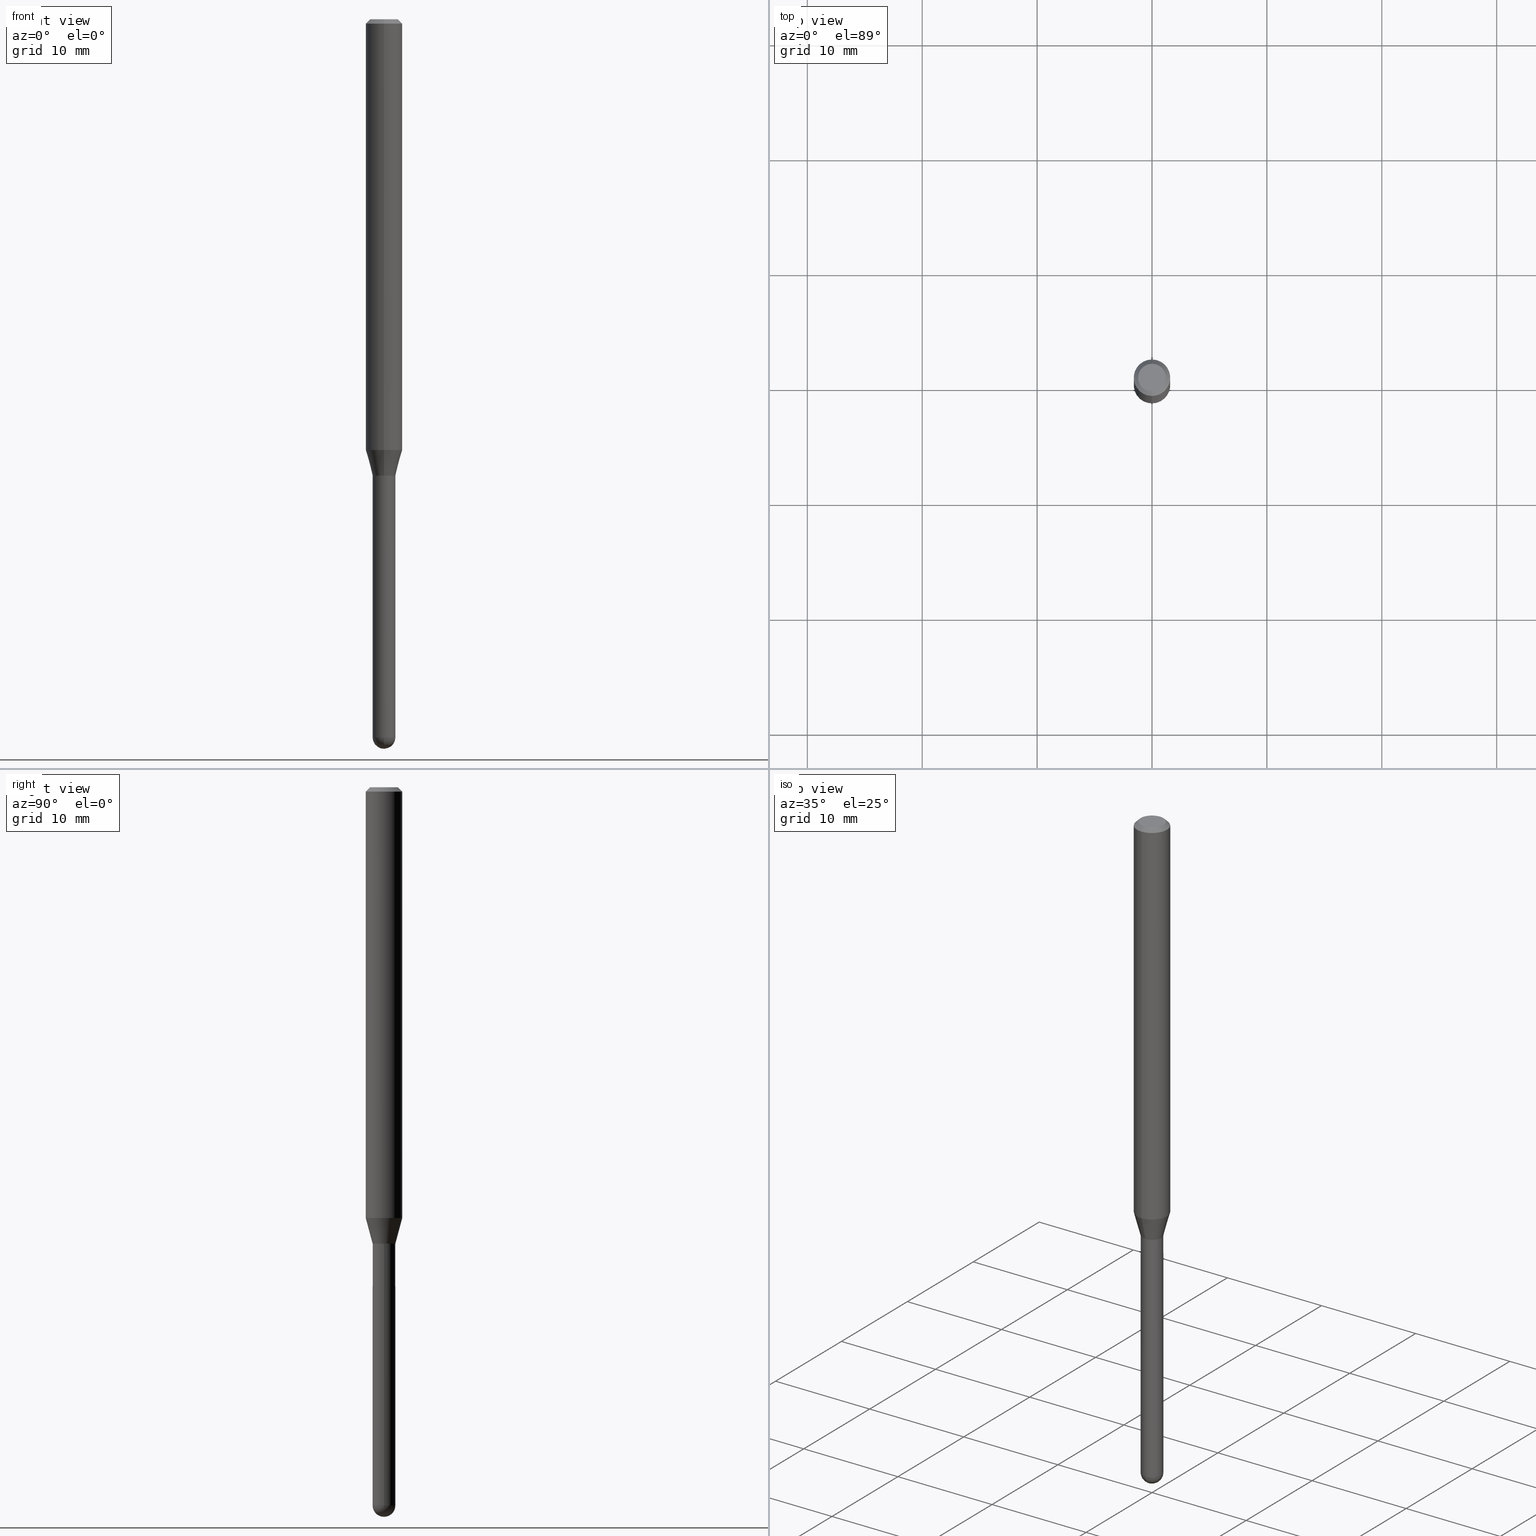
[diagram: canonical four-view strip — front | top / right | iso, engineering-drawing reading convention]
A machine part, canonical four-view strip (front | top / right | iso — engineering-drawing reading convention). The complete STEP part file that produces these views, byte-faithful:
ISO-10303-21;
HEADER;
FILE_DESCRIPTION (( 'STEP AP203' ),
    '1' );
FILE_NAME ('01572.STEP',
    '2024-03-07T19:40:54',
    ( '' ),
    ( '' ),
    'SwSTEP 2.0',
    'SolidWorks 2023',
    '' );
FILE_SCHEMA (( 'CONFIG_CONTROL_DESIGN' ));
ENDSEC;

DATA;
#1 = DIRECTION ( 'NONE',  ( -6.982962677686265922E-15, -1.000000000000000000, 3.491430038370001964E-15 ) ) ;
#2 = DIRECTION ( 'NONE',  ( 2.438088387897960049E-29, -3.491481338843145188E-15, -1.000000000000000000 ) ) ;
#3 = DIRECTION ( 'NONE',  ( -1.000000000000000000, 6.982962677686265922E-15, -4.883557194083112340E-29 ) ) ;
#4 = EDGE_CURVE ( 'NONE', #69, #130, #79, .T. ) ;
#5 = EDGE_LOOP ( 'NONE', ( #345, #174, #98, #48 ) ) ;
#6 = APPROVAL ( #24, 'UNSPECIFIED' ) ;
#7 = LENGTH_MEASURE_WITH_UNIT ( LENGTH_MEASURE( 0.02539999999999999897 ), #379 );
#8 = PERSON_AND_ORGANIZATION ( #292, #230 ) ;
#9 = DIRECTION ( 'NONE',  ( -6.982962677686265922E-15, -1.000000000000000000, 4.370956789862821150E-15 ) ) ;
#10 = CARTESIAN_POINT ( 'NONE',  ( 6.018298732021620914E-29, -8.592535574892981353E-15, -2.460999999999999854 ) ) ;
#11 = CARTESIAN_POINT ( 'NONE',  ( 2.723355444298241737E-16, 0.03899999999999134714, -2.460999999999999854 ) ) ;
#12 = DIRECTION ( 'NONE',  ( -6.982962677686266711E-15, -1.000000000000000000, 0.000000000000000000 ) ) ;
#13 = PLANE ( 'NONE',  #399 ) ;
#14 = CARTESIAN_POINT ( 'NONE',  ( 3.610290673073439047E-29, -5.154387014095367711E-15, -1.476296806022132868 ) ) ;
#15 = CARTESIAN_POINT ( 'NONE',  ( 3.824769239934401493E-29, -5.460596580010683788E-15, -1.564000000000000057 ) ) ;
#16 = VECTOR ( 'NONE', #20, 39.37007874015748143 ) ;
#17 = AXIS2_PLACEMENT_3D ( 'NONE', #502, #220, #377 ) ;
#18 = LINE ( 'NONE', #49, #205 ) ;
#19 = PRODUCT_DEFINITION_SHAPE ( 'NONE', 'NONE',  #450 ) ;
#20 = DIRECTION ( 'NONE',  ( -2.445468806185136877E-29, 3.491481338843145188E-15, 1.000000000000000000 ) ) ;
#21 = ORIENTED_EDGE ( 'NONE', *, *, #305, .F. ) ;
#22 = DIRECTION ( 'NONE',  ( -2.445504629114067359E-29, 3.491430038370002359E-15, 1.000000000000000000 ) ) ;
#23 = LINE ( 'NONE', #134, #263 ) ;
#24 = APPROVAL_STATUS ( 'not_yet_approved' ) ;
#25 = DATE_AND_TIME ( #373, #198 ) ;
#26 = AXIS2_PLACEMENT_3D ( 'NONE', #446, #320, #101 ) ;
#27 = ORIENTED_EDGE ( 'NONE', *, *, #51, .T. ) ;
#28 = AXIS2_PLACEMENT_3D ( 'NONE', #503, #459, #415 ) ;
#29 = ADVANCED_FACE ( 'NONE', ( #159 ), #448, .T. ) ;
#30 = EDGE_CURVE ( 'NONE', #126, #343, #402, .T. ) ;
#31 = APPROVAL_ROLE ( '' ) ;
#32 = DIRECTION ( 'NONE',  ( 1.839019923739650408E-15, 0.2588190451025319527, 0.9659258262890650926 ) ) ;
#33 = EDGE_LOOP ( 'NONE', ( #236, #419, #321, #462 ) ) ;
#34 = DATE_AND_TIME ( #371, #468 ) ;
#35 = AXIS2_PLACEMENT_3D ( 'NONE', #163, #243, #12 ) ;
#36 = PRODUCT_DEFINITION_FORMATION_WITH_SPECIFIED_SOURCE ( 'ANY', '', #210, .NOT_KNOWN. ) ;
#37 = FACE_OUTER_BOUND ( 'NONE', #303, .T. ) ;
#38 = DIRECTION ( 'NONE',  ( 1.000000000000000000, -6.982962677686283277E-15, 0.000000000000000000 ) ) ;
#39 = CARTESIAN_POINT ( 'NONE',  ( 0.000000000000000000, 0.000000000000000000, 0.000000000000000000 ) ) ;
#40 = CLOSED_SHELL ( 'NONE', ( #324, #105, #301, #436, #29, #216, #225, #140, #178, #242, #157, #331 ) ) ;
#41 = AXIS2_PLACEMENT_3D ( 'NONE', #479, #53, #387 ) ;
#42 = APPROVAL_PERSON_ORGANIZATION ( #109, #304, #253 ) ;
#43 = ORIENTED_EDGE ( 'NONE', *, *, #58, .T. ) ;
#44 = LINE ( 'NONE', #184, #248 ) ;
#45 = SPHERICAL_SURFACE ( 'NONE', #108, 0.03899999999999989586 ) ;
#46 = EDGE_CURVE ( 'NONE', #153, #135, #364, .T. ) ;
#47 = VERTEX_POINT ( 'NONE', #354 ) ;
#48 = ORIENTED_EDGE ( 'NONE', *, *, #370, .F. ) ;
#49 = CARTESIAN_POINT ( 'NONE',  ( -2.688440630908829534E-16, -0.03850000000000546041, -1.563999999999999835 ) ) ;
#50 = AXIS2_PLACEMENT_3D ( 'NONE', #63, #437, #396 ) ;
#51 = EDGE_CURVE ( 'NONE', #343, #135, #141, .T. ) ;
#52 = CARTESIAN_POINT ( 'NONE',  ( 3.824769239934400932E-29, -5.460596580010683000E-15, -1.563999999999999835 ) ) ;
#53 = DIRECTION ( 'NONE',  ( -2.445504629114067359E-29, 3.491430038370002359E-15, 1.000000000000000000 ) ) ;
#54 = DIRECTION ( 'NONE',  ( 6.982962677686265922E-15, 1.000000000000000000, -3.491430038370001964E-15 ) ) ;
#55 = MANIFOLD_SOLID_BREP ( 'Body-Move/Copy2[1]', #349 ) ;
#56 = DIRECTION ( 'NONE',  ( -1.807323732225379443E-15, -0.2588190451025252359, 0.9659258262890670910 ) ) ;
#57 = CYLINDRICAL_SURFACE ( 'NONE', #147, 0.03899999999999999994 ) ;
#58 = EDGE_CURVE ( 'NONE', #82, #47, #23, .T. ) ;
#59 = AXIS2_PLACEMENT_3D ( 'NONE', #386, #195, #9 ) ;
#60 = VECTOR ( 'NONE', #154, 39.37007874015748143 ) ;
#61 = DIRECTION ( 'NONE',  ( -2.445468806185136877E-29, 3.491481338843145188E-15, 1.000000000000000000 ) ) ;
#62 = ORIENTED_EDGE ( 'NONE', *, *, #143, .T. ) ;
#63 = CARTESIAN_POINT ( 'NONE',  ( 2.167391171561904280E-46, -3.094369379309082322E-32, -8.862756364305412568E-18 ) ) ;
#64 = EDGE_CURVE ( 'NONE', #47, #129, #329, .T. ) ;
#65 = EDGE_LOOP ( 'NONE', ( #461, #43, #484, #94 ) ) ;
#66 = EDGE_CURVE ( 'NONE', #206, #268, #237, .T. ) ;
#67 = CARTESIAN_POINT ( 'NONE',  ( 3.823546487619844458E-29, -5.458850864991499025E-15, -1.563500000000000112 ) ) ;
#68 = CONICAL_SURFACE ( 'NONE', #156, 0.03849999999999999256, 0.7853981633980202659 ) ;
#69 = VERTEX_POINT ( 'NONE', #270 ) ;
#70 = PERSON_AND_ORGANIZATION ( #292, #230 ) ;
#71 = APPROVAL_ROLE ( '' ) ;
#72 = AXIS2_PLACEMENT_3D ( 'NONE', #67, #217, #326 ) ;
#73 = CARTESIAN_POINT ( 'NONE',  ( 2.771116669464776770E-16, 0.03899999999999459455, -1.563500000000000112 ) ) ;
#74 = DIRECTION ( 'NONE',  ( -2.445468806185136597E-29, 3.491481338843145583E-15, 1.000000000000000000 ) ) ;
#75 = DIRECTION ( 'NONE',  ( 6.982962677686265922E-15, 1.000000000000000000, 0.000000000000000000 ) ) ;
#76 = CALENDAR_DATE ( 2024, 7, 3 ) ;
#77 = EDGE_LOOP ( 'NONE', ( #323, #390 ) ) ;
#78 = ORIENTED_EDGE ( 'NONE', *, *, #305, .T. ) ;
#79 = CIRCLE ( 'NONE', #59, 0.06250000000000000000 ) ;
#80 = LINE ( 'NONE', #454, #60 ) ;
#81 = VECTOR ( 'NONE', #296, 39.37007874015748143 ) ;
#82 = VERTEX_POINT ( 'NONE', #203 ) ;
#83 = PERSON_AND_ORGANIZATION_ROLE ( 'classification_officer' ) ;
#84 = EDGE_CURVE ( 'NONE', #470, #153, #440, .T. ) ;
#85 = CARTESIAN_POINT ( 'NONE',  ( 4.364351673553919652E-16, 0.06249999999999995143, -0.01500000000000022669 ) ) ;
#86 = DIRECTION ( 'NONE',  ( -2.445504629114067359E-29, 3.491430038370002359E-15, 1.000000000000000000 ) ) ;
#87 = CARTESIAN_POINT ( 'NONE',  ( 0.03899999999999999994, -5.733012358380444123E-15, -1.564000000000000057 ) ) ;
#88 = ORIENTED_EDGE ( 'NONE', *, *, #335, .T. ) ;
#89 = LOCAL_TIME ( 14, 40, 54.00000000000000000, #139 ) ;
#90 = DIRECTION ( 'NONE',  ( 6.982962677686265922E-15, 1.000000000000000000, -3.483106191921935554E-15 ) ) ;
#91 = DIRECTION ( 'NONE',  ( -6.982962677686265922E-15, -1.000000000000000000, 3.483106191921935554E-15 ) ) ;
#92 = FACE_OUTER_BOUND ( 'NONE', #5, .T. ) ;
#93 = EDGE_CURVE ( 'NONE', #192, #130, #477, .T. ) ;
#94 = ORIENTED_EDGE ( 'NONE', *, *, #166, .F. ) ;
#95 = DIRECTION ( 'NONE',  ( -2.445468806185136597E-29, 3.491481338843145583E-15, 1.000000000000000000 ) ) ;
#96 = CYLINDRICAL_SURFACE ( 'NONE', #41, 0.03899999999999992362 ) ;
#97 = VERTEX_POINT ( 'NONE', #348 ) ;
#98 = ORIENTED_EDGE ( 'NONE', *, *, #201, .T. ) ;
#99 = PERSON_AND_ORGANIZATION_ROLE ( 'design_owner' ) ;
#100 = EDGE_CURVE ( 'NONE', #127, #192, #312, .T. ) ;
#101 = DIRECTION ( 'NONE',  ( -6.982962677686266711E-15, -1.000000000000000000, 3.491430038370002753E-15 ) ) ;
#102 = EDGE_LOOP ( 'NONE', ( #158, #27 ) ) ;
#103 = DIRECTION ( 'NONE',  ( -2.445504629114067359E-29, 3.491430038370002359E-15, 1.000000000000000000 ) ) ;
#104 = CONICAL_SURFACE ( 'NONE', #219, 0.03849999999999999256, 0.7853981633980202659 ) ;
#105 = ADVANCED_FACE ( 'NONE', ( #494 ), #104, .T. ) ;
#106 = DIRECTION ( 'NONE',  ( -1.000000000000000000, 6.982962677686265922E-15, -4.883557194083112340E-29 ) ) ;
#107 = CARTESIAN_POINT ( 'NONE',  ( 0.000000000000000000, 0.000000000000000000, 0.000000000000000000 ) ) ;
#108 = AXIS2_PLACEMENT_3D ( 'NONE', #289, #106, #215 ) ;
#109 = PERSON_AND_ORGANIZATION ( #292, #230 ) ;
#110 = DIRECTION ( 'NONE',  ( -1.000000000000000000, 6.982962677686265922E-15, -4.876176775795935793E-29 ) ) ;
#111 = CARTESIAN_POINT ( 'NONE',  ( 3.824769239934401493E-29, -5.460596580010683788E-15, -1.564000000000000057 ) ) ;
#112 = EDGE_CURVE ( 'NONE', #130, #69, #366, .T. ) ;
#113 = VERTEX_POINT ( 'NONE', #11 ) ;
#114 = LINE ( 'NONE', #507, #81 ) ;
#115 = AXIS2_PLACEMENT_3D ( 'NONE', #186, #146, #501 ) ;
#116 = AXIS2_PLACEMENT_3D ( 'NONE', #247, #287, #133 ) ;
#117 =( GEOMETRIC_REPRESENTATION_CONTEXT ( 3 ) GLOBAL_UNCERTAINTY_ASSIGNED_CONTEXT ( ( #250 ) ) GLOBAL_UNIT_ASSIGNED_CONTEXT ( ( #351, #361, #121 ) ) REPRESENTATION_CONTEXT ( 'NONE', 'WORKASPACE' ) );
#118 = EDGE_LOOP ( 'NONE', ( #482, #424, #150, #316 ) ) ;
#119 = ORIENTED_EDGE ( 'NONE', *, *, #246, .F. ) ;
#120 = CARTESIAN_POINT ( 'NONE',  ( 3.824769239934401493E-29, -5.460596580010683788E-15, -1.564000000000000057 ) ) ;
#121 =( NAMED_UNIT ( * ) SI_UNIT ( $, .STERADIAN. ) SOLID_ANGLE_UNIT ( ) );
#122 = DIRECTION ( 'NONE',  ( -6.982962677686265922E-15, -1.000000000000000000, 0.000000000000000000 ) ) ;
#123 = CC_DESIGN_PERSON_AND_ORGANIZATION_ASSIGNMENT ( #245, #495, ( #450 ) ) ;
#124 = CARTESIAN_POINT ( 'NONE',  ( -2.723355444297236925E-16, -0.03900000000000511391, -1.564000000000000057 ) ) ;
#125 = EDGE_CURVE ( 'NONE', #97, #470, #196, .T. ) ;
#126 = VERTEX_POINT ( 'NONE', #476 ) ;
#127 = VERTEX_POINT ( 'NONE', #238 ) ;
#128 = FACE_OUTER_BOUND ( 'NONE', #283, .T. ) ;
#129 = VERTEX_POINT ( 'NONE', #313 ) ;
#130 = VERTEX_POINT ( 'NONE', #430 ) ;
#131 = APPROVAL ( #406, 'UNSPECIFIED' ) ;
#132 = AXIS2_PLACEMENT_3D ( 'NONE', #456, #182, #38 ) ;
#133 = DIRECTION ( 'NONE',  ( 6.982962677686265922E-15, 1.000000000000000000, -3.483106191921935554E-15 ) ) ;
#134 = CARTESIAN_POINT ( 'NONE',  ( -4.287811248607203282E-16, -0.06250000000000005551, -0.01499999999999979128 ) ) ;
#135 = VERTEX_POINT ( 'NONE', #87 ) ;
#136 = EDGE_CURVE ( 'NONE', #129, #47, #254, .T. ) ;
#137 = PERSON_AND_ORGANIZATION_ROLE ( 'creator' ) ;
#138 = EDGE_LOOP ( 'NONE', ( #428, #472, #194, #264 ) ) ;
#139 = COORDINATED_UNIVERSAL_TIME_OFFSET ( 5, 0, .BEHIND. ) ;
#140 = ADVANCED_FACE ( 'NONE', ( #481 ), #286, .T. ) ;
#141 = CIRCLE ( 'NONE', #498, 0.03899999999999999994 ) ;
#142 = AXIS2_PLACEMENT_3D ( 'NONE', #427, #160, #278 ) ;
#143 = EDGE_CURVE ( 'NONE', #82, #359, #372, .T. ) ;
#144 = CARTESIAN_POINT ( 'NONE',  ( 6.014963583493821915E-29, -8.597311697409657438E-15, -2.461000000000000298 ) ) ;
#145 = ORIENTED_EDGE ( 'NONE', *, *, #100, .F. ) ;
#146 = DIRECTION ( 'NONE',  ( -2.445504629114067359E-29, 3.491430038370002359E-15, 1.000000000000000000 ) ) ;
#147 = AXIS2_PLACEMENT_3D ( 'NONE', #319, #392, #207 ) ;
#148 = LOCAL_TIME ( 14, 40, 54.00000000000000000, #504 ) ;
#149 = ADVANCED_FACE ( 'NONE', ( #200 ), #57, .T. ) ;
#150 = ORIENTED_EDGE ( 'NONE', *, *, #93, .T. ) ;
#151 = CARTESIAN_POINT ( 'NONE',  ( 3.840629472727447874E-16, 0.04749999999999999362, -1.747056831868805136E-16 ) ) ;
#152 = DIRECTION ( 'NONE',  ( -6.982962677686265922E-15, -1.000000000000000000, 0.000000000000000000 ) ) ;
#153 = VERTEX_POINT ( 'NONE', #204 ) ;
#154 = DIRECTION ( 'NONE',  ( -2.445504629114067359E-29, 3.491430038370001964E-15, 1.000000000000000000 ) ) ;
#155 = ORIENTED_EDGE ( 'NONE', *, *, #51, .F. ) ;
#156 = AXIS2_PLACEMENT_3D ( 'NONE', #52, #22, #352 ) ;
#157 = ADVANCED_FACE ( 'NONE', ( #92 ), #68, .T. ) ;
#158 = ORIENTED_EDGE ( 'NONE', *, *, #497, .T. ) ;
#159 = FACE_OUTER_BOUND ( 'NONE', #138, .T. ) ;
#160 = DIRECTION ( 'NONE',  ( -1.000000000000000000, 7.105427357601001070E-15, -4.926315508542082329E-29 ) ) ;
#161 = FACE_OUTER_BOUND ( 'NONE', #340, .T. ) ;
#162 = DIRECTION ( 'NONE',  ( -2.445468806185136597E-29, 3.491481338843145583E-15, 1.000000000000000000 ) ) ;
#163 = CARTESIAN_POINT ( 'NONE',  ( 3.824769239934400932E-29, -5.460596580010683000E-15, -1.563999999999999835 ) ) ;
#164 = DIRECTION ( 'NONE',  ( -2.445468806185136597E-29, 3.491481338843145583E-15, 1.000000000000000000 ) ) ;
#165 = DIRECTION ( 'NONE',  ( -6.982962677686265922E-15, -1.000000000000000000, 3.483106191921935554E-15 ) ) ;
#166 = EDGE_CURVE ( 'NONE', #359, #129, #170, .T. ) ;
#167 = DIRECTION ( 'NONE',  ( -2.445504629114067359E-29, 3.491430038370002359E-15, 1.000000000000000000 ) ) ;
#168 = LINE ( 'NONE', #314, #189 ) ;
#169 = EDGE_LOOP ( 'NONE', ( #193, #398, #443, #426 ) ) ;
#170 = LINE ( 'NONE', #85, #339 ) ;
#171 = CARTESIAN_POINT ( 'NONE',  ( -2.688440630908829534E-16, -0.03850000000000546041, -1.563999999999999835 ) ) ;
#172 = APPROVAL_DATE_TIME ( #25, #131 ) ;
#173 = CIRCLE ( 'NONE', #28, 0.03899999999999999994 ) ;
#174 = ORIENTED_EDGE ( 'NONE', *, *, #66, .T. ) ;
#175 = PERSON_AND_ORGANIZATION ( #292, #230 ) ;
#176 = LINE ( 'NONE', #355, #293 ) ;
#177 = ORIENTED_EDGE ( 'NONE', *, *, #417, .T. ) ;
#178 = ADVANCED_FACE ( 'NONE', ( #346 ), #13, .F. ) ;
#179 = AXIS2_PLACEMENT_3D ( 'NONE', #487, #442, #91 ) ;
#180 = CIRCLE ( 'NONE', #132, 0.03899999999999999994 ) ;
#181 = APPROVAL_PERSON_ORGANIZATION ( #411, #131, #71 ) ;
#182 = DIRECTION ( 'NONE',  ( -2.445468806185136597E-29, 3.491481338843145583E-15, 1.000000000000000000 ) ) ;
#183 = APPROVAL_PERSON_ORGANIZATION ( #175, #6, #31 ) ;
#184 = CARTESIAN_POINT ( 'NONE',  ( 2.735589532676767785E-16, 0.03849999999999453165, -1.563999999999999835 ) ) ;
#185 = COORDINATED_UNIVERSAL_TIME_OFFSET ( 5, 0, .BEHIND. ) ;
#186 = CARTESIAN_POINT ( 'NONE',  ( 3.824769239934400932E-29, -5.460596580010683000E-15, -1.563999999999999835 ) ) ;
#187 = CALENDAR_DATE ( 2024, 7, 3 ) ;
#188 = EDGE_LOOP ( 'NONE', ( #267, #226, #21, #469 ) ) ;
#189 = VECTOR ( 'NONE', #277, 39.37007874015748143 ) ;
#190 = DIRECTION ( 'NONE',  ( -2.445504629114067359E-29, 3.491430038370001964E-15, 1.000000000000000000 ) ) ;
#191 = SECURITY_CLASSIFICATION ( '', '', #421 ) ;
#192 = VERTEX_POINT ( 'NONE', #308 ) ;
#193 = ORIENTED_EDGE ( 'NONE', *, *, #317, .F. ) ;
#194 = ORIENTED_EDGE ( 'NONE', *, *, #112, .F. ) ;
#195 = DIRECTION ( 'NONE',  ( -2.445504629114067359E-29, 3.491430038370002359E-15, 1.000000000000000000 ) ) ;
#196 = CIRCLE ( 'NONE', #142, 0.03899999999999989586 ) ;
#197 = CARTESIAN_POINT ( 'NONE',  ( 2.753353101070776221E-16, 0.03849999999999453165, -1.563999999999999835 ) ) ;
#198 = LOCAL_TIME ( 14, 40, 54.00000000000000000, #362 ) ;
#199 = DIRECTION ( 'NONE',  ( -2.445504629114067359E-29, 3.491430038370002359E-15, 1.000000000000000000 ) ) ;
#200 = FACE_OUTER_BOUND ( 'NONE', #356, .T. ) ;
#201 = EDGE_CURVE ( 'NONE', #268, #378, #18, .T. ) ;
#202 = DIRECTION ( 'NONE',  ( -4.937700262167370586E-15, -0.7071067811869493624, 0.7071067811861454500 ) ) ;
#203 = CARTESIAN_POINT ( 'NONE',  ( -3.773273898774340269E-16, -0.04749999999999999362, 1.569801704582696947E-16 ) ) ;
#204 = CARTESIAN_POINT ( 'NONE',  ( 0.03899999999999999994, -7.298941738851594355E-15, -2.460999999999999854 ) ) ;
#205 = VECTOR ( 'NONE', #202, 39.37007874015748854 ) ;
#206 = VERTEX_POINT ( 'NONE', #197 ) ;
#207 = DIRECTION ( 'NONE',  ( 1.000000000000000000, -6.982962677686265922E-15, 4.876176775795935793E-29 ) ) ;
#208 = CARTESIAN_POINT ( 'NONE',  ( -0.03899999999999999994, 2.771116669464390721E-16, -1.918384685199413078E-30 ) ) ;
#209 = EDGE_LOOP ( 'NONE', ( #295, #62 ) ) ;
#210 = PRODUCT ( '01572', '01572', '', ( #360 ) ) ;
#211 = ORIENTED_EDGE ( 'NONE', *, *, #46, .T. ) ;
#212 = APPLICATION_PROTOCOL_DEFINITION ( 'international standard', 'config_control_design', 1994, #310 ) ;
#213 = AXIS2_PLACEMENT_3D ( 'NONE', #10, #164, #395 ) ;
#214 = EDGE_CURVE ( 'NONE', #126, #470, #330, .T. ) ;
#215 = DIRECTION ( 'NONE',  ( 6.982962677686265922E-15, 1.000000000000000000, 0.000000000000000000 ) ) ;
#216 = ADVANCED_FACE ( 'NONE', ( #434 ), #460, .T. ) ;
#217 = DIRECTION ( 'NONE',  ( -2.445504629114067359E-29, 3.491430038370002359E-15, 1.000000000000000000 ) ) ;
#218 = AXIS2_PLACEMENT_3D ( 'NONE', #431, #393, #309 ) ;
#219 = AXIS2_PLACEMENT_3D ( 'NONE', #447, #103, #342 ) ;
#220 = DIRECTION ( 'NONE',  ( -2.445504629114067359E-29, 3.491430038370002359E-15, 1.000000000000000000 ) ) ;
#221 = AXIS2_PLACEMENT_3D ( 'NONE', #120, #199, #269 ) ;
#222 = ORIENTED_EDGE ( 'NONE', *, *, #214, .F. ) ;
#223 = CIRCLE ( 'NONE', #17, 0.03900000000000019423 ) ;
#224 = DIRECTION ( 'NONE',  ( 1.000000000000000000, -6.982962677686265922E-15, 4.876176775795935793E-29 ) ) ;
#225 = ADVANCED_FACE ( 'NONE', ( #336 ), #465, .T. ) ;
#226 = ORIENTED_EDGE ( 'NONE', *, *, #363, .T. ) ;
#227 = DIRECTION ( 'NONE',  ( 4.937700262164548042E-15, 0.7071067811865451302, -0.7071067811865499042 ) ) ;
#228 = DIRECTION ( 'NONE',  ( 1.000000000000000000, 0.000000000000000000, 0.000000000000000000 ) ) ;
#229 = CARTESIAN_POINT ( 'NONE',  ( 3.668256943671103088E-31, -5.237145057555006792E-17, -0.01500000000000000812 ) ) ;
#230 = ORGANIZATION ( 'UNSPECIFIED', 'UNSPECIFIED', '' ) ;
#231 = ADVANCED_FACE ( 'NONE', ( #266 ), #508, .T. ) ;
#232 = CARTESIAN_POINT ( 'NONE',  ( 0.000000000000000000, 0.000000000000000000, 0.000000000000000000 ) ) ;
#233 = DIRECTION ( 'NONE',  ( 2.445504629114067359E-29, -3.491430038370001964E-15, -1.000000000000000000 ) ) ;
#234 = CC_DESIGN_PERSON_AND_ORGANIZATION_ASSIGNMENT ( #70, #99, ( #210 ) ) ;
#235 = DIRECTION ( 'NONE',  ( -6.982962677686265922E-15, -1.000000000000000000, 4.370956789862821150E-15 ) ) ;
#236 = ORIENTED_EDGE ( 'NONE', *, *, #58, .F. ) ;
#237 = CIRCLE ( 'NONE', #35, 0.03849999999999999256 ) ;
#238 = CARTESIAN_POINT ( 'NONE',  ( 3.606004383982868113E-16, 0.03899999999999418515, -1.564000000000000057 ) ) ;
#239 = ORIENTED_EDGE ( 'NONE', *, *, #246, .T. ) ;
#240 = AXIS2_PLACEMENT_3D ( 'NONE', #483, #474, #122 ) ;
#241 = ORIENTED_EDGE ( 'NONE', *, *, #370, .T. ) ;
#242 = ADVANCED_FACE ( 'NONE', ( #297 ), #384, .F. ) ;
#243 = DIRECTION ( 'NONE',  ( -2.445504629114067359E-29, 3.491430038370002359E-15, 1.000000000000000000 ) ) ;
#244 = ORIENTED_EDGE ( 'NONE', *, *, #84, .F. ) ;
#245 = PERSON_AND_ORGANIZATION ( #292, #230 ) ;
#246 = EDGE_CURVE ( 'NONE', #97, #113, #322, .T. ) ;
#247 = CARTESIAN_POINT ( 'NONE',  ( 3.668256943671103088E-31, -5.237145057555006792E-17, -0.01500000000000000812 ) ) ;
#248 = VECTOR ( 'NONE', #299, 39.37007874015748854 ) ;
#249 = EDGE_LOOP ( 'NONE', ( #177, #490, #381, #306, #258 ) ) ;
#250 = UNCERTAINTY_MEASURE_WITH_UNIT (LENGTH_MEASURE( 1.000000000000000082E-05 ), #351, 'distance_accuracy_value', 'NONE');
#251 = CC_DESIGN_PERSON_AND_ORGANIZATION_ASSIGNMENT ( #491, #137, ( #36 ) ) ;
#252 = DIMENSIONAL_EXPONENTS ( 1.000000000000000000, 0.000000000000000000, 0.000000000000000000, 0.000000000000000000, 0.000000000000000000, 0.000000000000000000, 0.000000000000000000 ) ;
#253 = APPROVAL_ROLE ( '' ) ;
#254 = CIRCLE ( 'NONE', #489, 0.06250000000000000000 ) ;
#255 = DIRECTION ( 'NONE',  ( -2.445504629114067359E-29, 3.491430038370002359E-15, 1.000000000000000000 ) ) ;
#256 = CARTESIAN_POINT ( 'NONE',  ( 0.000000000000000000, 0.000000000000000000, 0.000000000000000000 ) ) ;
#257 = SPHERICAL_SURFACE ( 'NONE', #423, 0.03899999999999989586 ) ;
#258 = ORIENTED_EDGE ( 'NONE', *, *, #334, .T. ) ;
#259 = DATE_AND_TIME ( #187, #500 ) ;
#260 = EDGE_LOOP ( 'NONE', ( #119, #506, #222, #403 ) ) ;
#261 = FACE_OUTER_BOUND ( 'NONE', #102, .T. ) ;
#262 = ADVANCED_FACE ( 'NONE', ( #420 ), #45, .T. ) ;
#263 = VECTOR ( 'NONE', #435, 39.37007874015748143 ) ;
#264 = ORIENTED_EDGE ( 'NONE', *, *, #93, .F. ) ;
#265 = AXIS2_PLACEMENT_3D ( 'NONE', #111, #190, #1 ) ;
#266 = FACE_OUTER_BOUND ( 'NONE', #249, .T. ) ;
#267 = ORIENTED_EDGE ( 'NONE', *, *, #353, .T. ) ;
#268 = VERTEX_POINT ( 'NONE', #171 ) ;
#269 = DIRECTION ( 'NONE',  ( -6.982962677686265922E-15, -1.000000000000000000, 0.000000000000000000 ) ) ;
#270 = CARTESIAN_POINT ( 'NONE',  ( 4.440892098500983121E-16, 0.06249999999999480971, -1.476296806022133312 ) ) ;
#271 = VECTOR ( 'NONE', #56, 39.37007874015748143 ) ;
#272 = DIRECTION ( 'NONE',  ( -2.445504629114067359E-29, 3.491430038370002359E-15, 1.000000000000000000 ) ) ;
#273 = CC_DESIGN_APPROVAL ( #304, ( #191 ) ) ;
#274 = EDGE_LOOP ( 'NONE', ( #405, #512, #418, #298 ) ) ;
#275 = DIRECTION ( 'NONE',  ( -6.982962677686265922E-15, -1.000000000000000000, 0.000000000000000000 ) ) ;
#276 = ORIENTED_EDGE ( 'NONE', *, *, #125, .F. ) ;
#277 = DIRECTION ( 'NONE',  ( -2.445504629114067359E-29, 3.491430038370001964E-15, 1.000000000000000000 ) ) ;
#278 = DIRECTION ( 'NONE',  ( -7.105427357601000281E-15, -1.000000000000000000, 0.000000000000000000 ) ) ;
#279 = ORIENTED_EDGE ( 'NONE', *, *, #458, .T. ) ;
#280 = CARTESIAN_POINT ( 'NONE',  ( 0.000000000000000000, 0.000000000000000000, 0.000000000000000000 ) ) ;
#281 = CIRCLE ( 'NONE', #26, 0.04749999999999999362 ) ;
#282 = LINE ( 'NONE', #369, #449 ) ;
#283 = EDGE_LOOP ( 'NONE', ( #318, #328, #88, #78 ) ) ;
#284 = PERSON_AND_ORGANIZATION ( #292, #230 ) ;
#285 = VECTOR ( 'NONE', #61, 39.37007874015748143 ) ;
#286 = CONICAL_SURFACE ( 'NONE', #380, 0.06250000000000000000, 0.7853981633974483900 ) ;
#287 = DIRECTION ( 'NONE',  ( 2.445504629114067359E-29, -3.491430038370002359E-15, -1.000000000000000000 ) ) ;
#288 = DATE_TIME_ROLE ( 'creation_date' ) ;
#289 = CARTESIAN_POINT ( 'NONE',  ( 6.014963583493821915E-29, -8.597311697409657438E-15, -2.461000000000000298 ) ) ;
#290 = CARTESIAN_POINT ( 'NONE',  ( 2.723355444298025786E-16, 0.03899999999999453210, -1.564000000000000057 ) ) ;
#291 = EDGE_CURVE ( 'NONE', #359, #82, #281, .T. ) ;
#292 = PERSON ( 'UNSPECIFIED', 'UNSPECIFIED', 'UNSPECIFIED', ('UNSPECIFIED'), ('UNSPECIFIED'), ('UNSPECIFIED') ) ;
#293 = VECTOR ( 'NONE', #473, 39.37007874015748143 ) ;
#294 = AXIS2_PLACEMENT_3D ( 'NONE', #280, #429, #228 ) ;
#295 = ORIENTED_EDGE ( 'NONE', *, *, #291, .T. ) ;
#296 = DIRECTION ( 'NONE',  ( -2.445504629114067359E-29, 3.491430038370001964E-15, 1.000000000000000000 ) ) ;
#297 = FACE_OUTER_BOUND ( 'NONE', #77, .T. ) ;
#298 = ORIENTED_EDGE ( 'NONE', *, *, #389, .F. ) ;
#299 = DIRECTION ( 'NONE',  ( 5.024295867790934632E-15, 0.7071067811869542474, 0.7071067811861405650 ) ) ;
#300 = CARTESIAN_POINT ( 'NONE',  ( 6.014963583493821915E-29, -8.597311697409657438E-15, -2.461000000000000298 ) ) ;
#301 = ADVANCED_FACE ( 'NONE', ( #488 ), #302, .T. ) ;
#302 = CONICAL_SURFACE ( 'NONE', #116, 0.06250000000000000000, 0.7853981633974483900 ) ;
#303 = EDGE_LOOP ( 'NONE', ( #276, #239, #471, #244 ) ) ;
#304 = APPROVAL ( #475, 'UNSPECIFIED' ) ;
#305 = EDGE_CURVE ( 'NONE', #378, #438, #409, .T. ) ;
#306 = ORIENTED_EDGE ( 'NONE', *, *, #46, .F. ) ;
#307 = EDGE_CURVE ( 'NONE', #127, #69, #282, .T. ) ;
#308 = CARTESIAN_POINT ( 'NONE',  ( -2.723355444297236925E-16, -0.03900000000000511391, -1.564000000000000057 ) ) ;
#309 = DIRECTION ( 'NONE',  ( 1.000000000000000000, -6.982962677686283277E-15, 0.000000000000000000 ) ) ;
#310 = APPLICATION_CONTEXT ( 'configuration controlled 3d designs of mechanical parts and assemblies' ) ;
#311 = CC_DESIGN_PERSON_AND_ORGANIZATION_ASSIGNMENT ( #8, #83, ( #191 ) ) ;
#312 = CIRCLE ( 'NONE', #412, 0.03899999999999964606 ) ;
#313 = CARTESIAN_POINT ( 'NONE',  ( 4.440892098500989038E-16, 0.06249999999999995143, -0.01500000000000022669 ) ) ;
#314 = CARTESIAN_POINT ( 'NONE',  ( -2.723355444297638258E-16, -0.03899999999999992362, 1.361657714964298167E-16 ) ) ;
#315 = DIRECTION ( 'NONE',  ( 1.000000000000000000, -6.982962677686283277E-15, 0.000000000000000000 ) ) ;
#316 = ORIENTED_EDGE ( 'NONE', *, *, #4, .F. ) ;
#317 = EDGE_CURVE ( 'NONE', #69, #129, #176, .T. ) ;
#318 = ORIENTED_EDGE ( 'NONE', *, *, #458, .F. ) ;
#319 = CARTESIAN_POINT ( 'NONE',  ( 0.000000000000000000, 0.000000000000000000, 0.000000000000000000 ) ) ;
#320 = DIRECTION ( 'NONE',  ( -2.445504629114067359E-29, 3.491430038370002359E-15, 1.000000000000000000 ) ) ;
#321 = ORIENTED_EDGE ( 'NONE', *, *, #166, .T. ) ;
#322 = CIRCLE ( 'NONE', #344, 0.03899999999999989586 ) ;
#323 = ORIENTED_EDGE ( 'NONE', *, *, #353, .F. ) ;
#324 = ADVANCED_FACE ( 'NONE', ( #161 ), #433, .F. ) ;
#325 = DESIGN_CONTEXT ( 'detailed design', #310, 'design' ) ;
#326 = DIRECTION ( 'NONE',  ( -6.982962677686266711E-15, -1.000000000000000000, 0.000000000000000000 ) ) ;
#327 = APPROVAL_DATE_TIME ( #408, #6 ) ;
#328 = ORIENTED_EDGE ( 'NONE', *, *, #452, .F. ) ;
#329 = CIRCLE ( 'NONE', #179, 0.06250000000000000000 ) ;
#330 = CIRCLE ( 'NONE', #478, 0.03899999999999999994 ) ;
#331 = ADVANCED_FACE ( 'NONE', ( #128 ), #96, .F. ) ;
#332 = FACE_OUTER_BOUND ( 'NONE', #274, .T. ) ;
#333 = DIRECTION ( 'NONE',  ( 6.982962677686265922E-15, 1.000000000000000000, 0.000000000000000000 ) ) ;
#334 = EDGE_CURVE ( 'NONE', #153, #113, #432, .T. ) ;
#335 = EDGE_CURVE ( 'NONE', #192, #378, #168, .T. ) ;
#336 = FACE_OUTER_BOUND ( 'NONE', #169, .T. ) ;
#337 = DATE_TIME_ROLE ( 'classification_date' ) ;
#338 = CARTESIAN_POINT ( 'NONE',  ( -2.723355444297284257E-16, -0.03900000000000579392, -1.563500000000000112 ) ) ;
#339 = VECTOR ( 'NONE', #227, 39.37007874015748143 ) ;
#340 = EDGE_LOOP ( 'NONE', ( #145, #279, #241, #486 ) ) ;
#341 = PLANE ( 'NONE',  #397 ) ;
#342 = DIRECTION ( 'NONE',  ( -6.982962677686266711E-15, -1.000000000000000000, 0.000000000000000000 ) ) ;
#343 = VERTEX_POINT ( 'NONE', #496 ) ;
#344 = AXIS2_PLACEMENT_3D ( 'NONE', #300, #463, #333 ) ;
#345 = ORIENTED_EDGE ( 'NONE', *, *, #363, .F. ) ;
#346 = FACE_OUTER_BOUND ( 'NONE', #209, .T. ) ;
#347 = CARTESIAN_POINT ( 'NONE',  ( 6.018298732021620914E-29, -8.592535574892981353E-15, -2.460999999999999854 ) ) ;
#348 = CARTESIAN_POINT ( 'NONE',  ( 6.112004441198941993E-29, -8.731091408366202985E-15, -2.500000000000000000 ) ) ;
#349 = CLOSED_SHELL ( 'NONE', ( #231, #262, #404, #492, #149 ) ) ;
#350 = AXIS2_PLACEMENT_3D ( 'NONE', #256, #457, #414 ) ;
#351 =( CONVERSION_BASED_UNIT ( 'INCH', #7 ) LENGTH_UNIT ( ) NAMED_UNIT ( #252 ) );
#352 = DIRECTION ( 'NONE',  ( -6.982962677686266711E-15, -1.000000000000000000, 0.000000000000000000 ) ) ;
#353 = EDGE_CURVE ( 'NONE', #268, #206, #499, .T. ) ;
#354 = CARTESIAN_POINT ( 'NONE',  ( -4.364351673553912750E-16, -0.06250000000000005551, -0.01499999999999979128 ) ) ;
#355 = CARTESIAN_POINT ( 'NONE',  ( 4.440892098500625669E-16, 0.06250000000000000000, -2.182143773981251474E-16 ) ) ;
#356 = EDGE_LOOP ( 'NONE', ( #464, #407, #365, #211, #155 ) ) ;
#357 = DIRECTION ( 'NONE',  ( -2.445504629114067359E-29, 3.491430038370002359E-15, 1.000000000000000000 ) ) ;
#358 = DIRECTION ( 'NONE',  ( 1.000000000000000000, -6.982962677686258033E-15, 0.000000000000000000 ) ) ;
#359 = VERTEX_POINT ( 'NONE', #151 ) ;
#360 = MECHANICAL_CONTEXT ( 'NONE', #385, 'mechanical' ) ;
#361 =( NAMED_UNIT ( * ) PLANE_ANGLE_UNIT ( ) SI_UNIT ( $, .RADIAN. ) );
#362 = COORDINATED_UNIVERSAL_TIME_OFFSET ( 5, 0, .BEHIND. ) ;
#363 = EDGE_CURVE ( 'NONE', #206, #438, #44, .T. ) ;
#364 = LINE ( 'NONE', #493, #285 ) ;
#365 = ORIENTED_EDGE ( 'NONE', *, *, #84, .T. ) ;
#366 = CIRCLE ( 'NONE', #466, 0.06250000000000000000 ) ;
#367 = CC_DESIGN_APPROVAL ( #131, ( #36 ) ) ;
#368 = ADVANCED_BREP_SHAPE_REPRESENTATION ( '01572', ( #55, #376, #294 ), #117 ) ;
#369 = CARTESIAN_POINT ( 'NONE',  ( 2.771116669464747681E-16, 0.03899999999999418515, -1.564000000000000057 ) ) ;
#370 = EDGE_CURVE ( 'NONE', #438, #378, #223, .T. ) ;
#371 = CALENDAR_DATE ( 2024, 7, 3 ) ;
#372 = CIRCLE ( 'NONE', #50, 0.04749999999999999362 ) ;
#373 = CALENDAR_DATE ( 2024, 7, 3 ) ;
#374 = CC_DESIGN_APPROVAL ( #6, ( #450 ) ) ;
#375 = CARTESIAN_POINT ( 'NONE',  ( 3.824769239934401493E-29, -5.460596580010683788E-15, -1.564000000000000057 ) ) ;
#376 = MANIFOLD_SOLID_BREP ( 'Body-Move/Copy2[2]', #40 ) ;
#377 = DIRECTION ( 'NONE',  ( -6.982962677686266711E-15, -1.000000000000000000, 0.000000000000000000 ) ) ;
#378 = VERTEX_POINT ( 'NONE', #338 ) ;
#379 =( LENGTH_UNIT ( ) NAMED_UNIT ( * ) SI_UNIT ( $, .METRE. ) );
#380 = AXIS2_PLACEMENT_3D ( 'NONE', #229, #400, #90 ) ;
#381 = ORIENTED_EDGE ( 'NONE', *, *, #497, .F. ) ;
#382 = CARTESIAN_POINT ( 'NONE',  ( -2.771116669463784777E-16, -0.03900000000000854172, -2.460999999999999854 ) ) ;
#383 = CC_DESIGN_DATE_AND_TIME_ASSIGNMENT ( #510, #337, ( #191 ) ) ;
#384 = PLANE ( 'NONE',  #265 ) ;
#385 = APPLICATION_CONTEXT ( 'configuration controlled 3d designs of mechanical parts and assemblies' ) ;
#386 = CARTESIAN_POINT ( 'NONE',  ( 3.610290673073439047E-29, -5.154387014095367711E-15, -1.476296806022132868 ) ) ;
#387 = DIRECTION ( 'NONE',  ( -6.982962677686265922E-15, -1.000000000000000000, 3.491430038370001964E-15 ) ) ;
#388 = CARTESIAN_POINT ( 'NONE',  ( 3.316907271900976096E-16, 0.04749999999999999362, -1.702743050047277842E-16 ) ) ;
#389 = EDGE_CURVE ( 'NONE', #130, #47, #114, .T. ) ;
#390 = ORIENTED_EDGE ( 'NONE', *, *, #66, .F. ) ;
#391 = AXIS2_PLACEMENT_3D ( 'NONE', #107, #255, #413 ) ;
#392 = DIRECTION ( 'NONE',  ( -2.445468806185136597E-29, 3.491481338843145583E-15, 1.000000000000000000 ) ) ;
#393 = DIRECTION ( 'NONE',  ( -2.445468806185136597E-29, 3.491481338843145583E-15, 1.000000000000000000 ) ) ;
#394 = DIRECTION ( 'NONE',  ( -6.982962677686265922E-15, -1.000000000000000000, 3.491430038370001964E-15 ) ) ;
#395 = DIRECTION ( 'NONE',  ( 1.000000000000000000, -6.982962677686283277E-15, 0.000000000000000000 ) ) ;
#396 = DIRECTION ( 'NONE',  ( -6.982962677686266711E-15, -1.000000000000000000, 3.491430038370002753E-15 ) ) ;
#397 = AXIS2_PLACEMENT_3D ( 'NONE', #290, #2, #110 ) ;
#398 = ORIENTED_EDGE ( 'NONE', *, *, #4, .T. ) ;
#399 = AXIS2_PLACEMENT_3D ( 'NONE', #388, #233, #54 ) ;
#400 = DIRECTION ( 'NONE',  ( 2.445504629114067359E-29, -3.491430038370002359E-15, -1.000000000000000000 ) ) ;
#401 = CC_DESIGN_PERSON_AND_ORGANIZATION_ASSIGNMENT ( #284, #445, ( #36 ) ) ;
#402 = LINE ( 'NONE', #208, #16 ) ;
#403 = ORIENTED_EDGE ( 'NONE', *, *, #417, .F. ) ;
#404 = ADVANCED_FACE ( 'NONE', ( #261 ), #341, .F. ) ;
#405 = ORIENTED_EDGE ( 'NONE', *, *, #112, .T. ) ;
#406 = APPROVAL_STATUS ( 'not_yet_approved' ) ;
#407 = ORIENTED_EDGE ( 'NONE', *, *, #214, .T. ) ;
#408 = DATE_AND_TIME ( #444, #89 ) ;
#409 = CIRCLE ( 'NONE', #72, 0.03900000000000019423 ) ;
#410 = PRODUCT_RELATED_PRODUCT_CATEGORY ( 'detail', '', ( #210 ) ) ;
#411 = PERSON_AND_ORGANIZATION ( #292, #230 ) ;
#412 = AXIS2_PLACEMENT_3D ( 'NONE', #15, #167, #275 ) ;
#413 = DIRECTION ( 'NONE',  ( -6.982962677686265922E-15, -1.000000000000000000, 3.491430038370002359E-15 ) ) ;
#414 = DIRECTION ( 'NONE',  ( -6.982962677686265922E-15, -1.000000000000000000, 3.491430038370002359E-15 ) ) ;
#415 = DIRECTION ( 'NONE',  ( 1.000000000000000000, -6.982962677686258033E-15, 0.000000000000000000 ) ) ;
#416 = SHAPE_DEFINITION_REPRESENTATION ( #19, #368 ) ;
#417 = EDGE_CURVE ( 'NONE', #113, #126, #180, .T. ) ;
#418 = ORIENTED_EDGE ( 'NONE', *, *, #64, .F. ) ;
#419 = ORIENTED_EDGE ( 'NONE', *, *, #291, .F. ) ;
#420 = FACE_OUTER_BOUND ( 'NONE', #260, .T. ) ;
#421 = SECURITY_CLASSIFICATION_LEVEL ( 'unclassified' ) ;
#422 = AXIS2_PLACEMENT_3D ( 'NONE', #39, #74, #224 ) ;
#423 = AXIS2_PLACEMENT_3D ( 'NONE', #144, #3, #75 ) ;
#424 = ORIENTED_EDGE ( 'NONE', *, *, #100, .T. ) ;
#425 = DIRECTION ( 'NONE',  ( -2.445504629114067359E-29, 3.491430038370002359E-15, 1.000000000000000000 ) ) ;
#426 = ORIENTED_EDGE ( 'NONE', *, *, #136, .F. ) ;
#427 = CARTESIAN_POINT ( 'NONE',  ( 6.014963583493821915E-29, -8.597311697409657438E-15, -2.461000000000000298 ) ) ;
#428 = ORIENTED_EDGE ( 'NONE', *, *, #452, .T. ) ;
#429 = DIRECTION ( 'NONE',  ( 0.000000000000000000, 0.000000000000000000, 1.000000000000000000 ) ) ;
#430 = CARTESIAN_POINT ( 'NONE',  ( -4.364351673553557762E-16, -0.06250000000000519029, -1.476296806022132646 ) ) ;
#431 = CARTESIAN_POINT ( 'NONE',  ( 6.018298732021620914E-29, -8.592535574892981353E-15, -2.460999999999999854 ) ) ;
#432 = CIRCLE ( 'NONE', #213, 0.03899999999999999994 ) ;
#433 = CYLINDRICAL_SURFACE ( 'NONE', #509, 0.03899999999999992362 ) ;
#434 = FACE_OUTER_BOUND ( 'NONE', #118, .T. ) ;
#435 = DIRECTION ( 'NONE',  ( -4.851104656540964275E-15, -0.7071067811865500152, -0.7071067811865450192 ) ) ;
#436 = ADVANCED_FACE ( 'NONE', ( #332 ), #453, .T. ) ;
#437 = DIRECTION ( 'NONE',  ( -2.445504629114067359E-29, 3.491430038370002359E-15, 1.000000000000000000 ) ) ;
#438 = VERTEX_POINT ( 'NONE', #73 ) ;
#439 = CARTESIAN_POINT ( 'NONE',  ( 3.668256943671103088E-31, -5.237145057555006792E-17, -0.01500000000000000812 ) ) ;
#440 = CIRCLE ( 'NONE', #218, 0.03899999999999999994 ) ;
#441 = CC_DESIGN_SECURITY_CLASSIFICATION ( #191, ( #36 ) ) ;
#442 = DIRECTION ( 'NONE',  ( -2.445504629114067359E-29, 3.491430038370002359E-15, 1.000000000000000000 ) ) ;
#443 = ORIENTED_EDGE ( 'NONE', *, *, #389, .T. ) ;
#444 = CALENDAR_DATE ( 2024, 7, 3 ) ;
#445 = PERSON_AND_ORGANIZATION_ROLE ( 'design_supplier' ) ;
#446 = CARTESIAN_POINT ( 'NONE',  ( 2.167391171561904280E-46, -3.094369379309082322E-32, -8.862756364305412568E-18 ) ) ;
#447 = CARTESIAN_POINT ( 'NONE',  ( 3.824769239934400932E-29, -5.460596580010683000E-15, -1.563999999999999835 ) ) ;
#448 = CONICAL_SURFACE ( 'NONE', #221, 0.03899999999999964606, 0.2617993877991575680 ) ;
#449 = VECTOR ( 'NONE', #32, 39.37007874015748854 ) ;
#450 = PRODUCT_DEFINITION ( 'UNKNOWN', '', #36, #325 ) ;
#451 = CIRCLE ( 'NONE', #511, 0.03899999999999964606 ) ;
#452 = EDGE_CURVE ( 'NONE', #192, #127, #451, .T. ) ;
#453 = CYLINDRICAL_SURFACE ( 'NONE', #391, 0.06250000000000000000 ) ;
#454 = CARTESIAN_POINT ( 'NONE',  ( 2.771116669464384311E-16, 0.03899999999999992362, -1.361657714964298167E-16 ) ) ;
#455 = COORDINATED_UNIVERSAL_TIME_OFFSET ( 5, 0, .BEHIND. ) ;
#456 = CARTESIAN_POINT ( 'NONE',  ( 6.018298732021620914E-29, -8.592535574892981353E-15, -2.460999999999999854 ) ) ;
#457 = DIRECTION ( 'NONE',  ( -2.445504629114067359E-29, 3.491430038370002359E-15, 1.000000000000000000 ) ) ;
#458 = EDGE_CURVE ( 'NONE', #127, #438, #80, .T. ) ;
#459 = DIRECTION ( 'NONE',  ( -2.445468806185136597E-29, 3.491481338843145583E-15, 1.000000000000000000 ) ) ;
#460 = CONICAL_SURFACE ( 'NONE', #240, 0.03899999999999964606, 0.2617993877991575680 ) ;
#461 = ORIENTED_EDGE ( 'NONE', *, *, #143, .F. ) ;
#462 = ORIENTED_EDGE ( 'NONE', *, *, #136, .T. ) ;
#463 = DIRECTION ( 'NONE',  ( 1.000000000000000000, -6.982962677686265922E-15, 4.883557194083112340E-29 ) ) ;
#464 = ORIENTED_EDGE ( 'NONE', *, *, #30, .F. ) ;
#465 = CYLINDRICAL_SURFACE ( 'NONE', #350, 0.06250000000000000000 ) ;
#466 = AXIS2_PLACEMENT_3D ( 'NONE', #14, #272, #235 ) ;
#467 = CC_DESIGN_DATE_AND_TIME_ASSIGNMENT ( #34, #288, ( #450 ) ) ;
#468 = LOCAL_TIME ( 14, 40, 54.00000000000000000, #455 ) ;
#469 = ORIENTED_EDGE ( 'NONE', *, *, #201, .F. ) ;
#470 = VERTEX_POINT ( 'NONE', #382 ) ;
#471 = ORIENTED_EDGE ( 'NONE', *, *, #334, .F. ) ;
#472 = ORIENTED_EDGE ( 'NONE', *, *, #307, .T. ) ;
#473 = DIRECTION ( 'NONE',  ( -2.445504629114067359E-29, 3.491430038370001964E-15, 1.000000000000000000 ) ) ;
#474 = DIRECTION ( 'NONE',  ( -2.445504629114067359E-29, 3.491430038370002359E-15, 1.000000000000000000 ) ) ;
#475 = APPROVAL_STATUS ( 'not_yet_approved' ) ;
#476 = CARTESIAN_POINT ( 'NONE',  ( -0.03899999999999999994, -6.749494527475391014E-15, -2.460999999999999854 ) ) ;
#477 = LINE ( 'NONE', #124, #271 ) ;
#478 = AXIS2_PLACEMENT_3D ( 'NONE', #347, #162, #315 ) ;
#479 = CARTESIAN_POINT ( 'NONE',  ( 0.000000000000000000, 0.000000000000000000, 0.000000000000000000 ) ) ;
#480 = APPLICATION_PROTOCOL_DEFINITION ( 'international standard', 'config_control_design', 1994, #385 ) ;
#481 = FACE_OUTER_BOUND ( 'NONE', #33, .T. ) ;
#482 = ORIENTED_EDGE ( 'NONE', *, *, #307, .F. ) ;
#483 = CARTESIAN_POINT ( 'NONE',  ( 3.824769239934401493E-29, -5.460596580010683788E-15, -1.564000000000000057 ) ) ;
#484 = ORIENTED_EDGE ( 'NONE', *, *, #64, .T. ) ;
#485 = CARTESIAN_POINT ( 'NONE',  ( 3.824713212873553776E-29, -5.460676813950680100E-15, -1.564000000000000057 ) ) ;
#486 = ORIENTED_EDGE ( 'NONE', *, *, #335, .F. ) ;
#487 = CARTESIAN_POINT ( 'NONE',  ( 3.668256943671103088E-31, -5.237145057555006792E-17, -0.01500000000000000812 ) ) ;
#488 = FACE_OUTER_BOUND ( 'NONE', #65, .T. ) ;
#489 = AXIS2_PLACEMENT_3D ( 'NONE', #439, #357, #165 ) ;
#490 = ORIENTED_EDGE ( 'NONE', *, *, #30, .T. ) ;
#491 = PERSON_AND_ORGANIZATION ( #292, #230 ) ;
#492 = ADVANCED_FACE ( 'NONE', ( #37 ), #257, .T. ) ;
#493 = CARTESIAN_POINT ( 'NONE',  ( 0.03899999999999999994, -2.723355444297643682E-16, 1.901708942560414931E-30 ) ) ;
#494 = FACE_OUTER_BOUND ( 'NONE', #188, .T. ) ;
#495 = PERSON_AND_ORGANIZATION_ROLE ( 'creator' ) ;
#496 = CARTESIAN_POINT ( 'NONE',  ( -0.03899999999999999994, -6.749494527475391014E-15, -1.564000000000000057 ) ) ;
#497 = EDGE_CURVE ( 'NONE', #135, #343, #173, .T. ) ;
#498 = AXIS2_PLACEMENT_3D ( 'NONE', #485, #95, #358 ) ;
#499 = CIRCLE ( 'NONE', #115, 0.03849999999999999256 ) ;
#500 = LOCAL_TIME ( 14, 40, 54.00000000000000000, #185 ) ;
#501 = DIRECTION ( 'NONE',  ( -6.982962677686266711E-15, -1.000000000000000000, 0.000000000000000000 ) ) ;
#502 = CARTESIAN_POINT ( 'NONE',  ( 3.823546487619844458E-29, -5.458850864991499025E-15, -1.563500000000000112 ) ) ;
#503 = CARTESIAN_POINT ( 'NONE',  ( 3.824713212873553776E-29, -5.460676813950680100E-15, -1.564000000000000057 ) ) ;
#504 = COORDINATED_UNIVERSAL_TIME_OFFSET ( 5, 0, .BEHIND. ) ;
#505 = APPROVAL_DATE_TIME ( #259, #304 ) ;
#506 = ORIENTED_EDGE ( 'NONE', *, *, #125, .T. ) ;
#507 = CARTESIAN_POINT ( 'NONE',  ( -4.364351673553916201E-16, -0.06250000000000000000, 2.182143773981251474E-16 ) ) ;
#508 = CYLINDRICAL_SURFACE ( 'NONE', #422, 0.03899999999999999994 ) ;
#509 = AXIS2_PLACEMENT_3D ( 'NONE', #232, #86, #394 ) ;
#510 = DATE_AND_TIME ( #76, #148 ) ;
#511 = AXIS2_PLACEMENT_3D ( 'NONE', #375, #425, #152 ) ;
#512 = ORIENTED_EDGE ( 'NONE', *, *, #317, .T. ) ;
ENDSEC;
END-ISO-10303-21;
